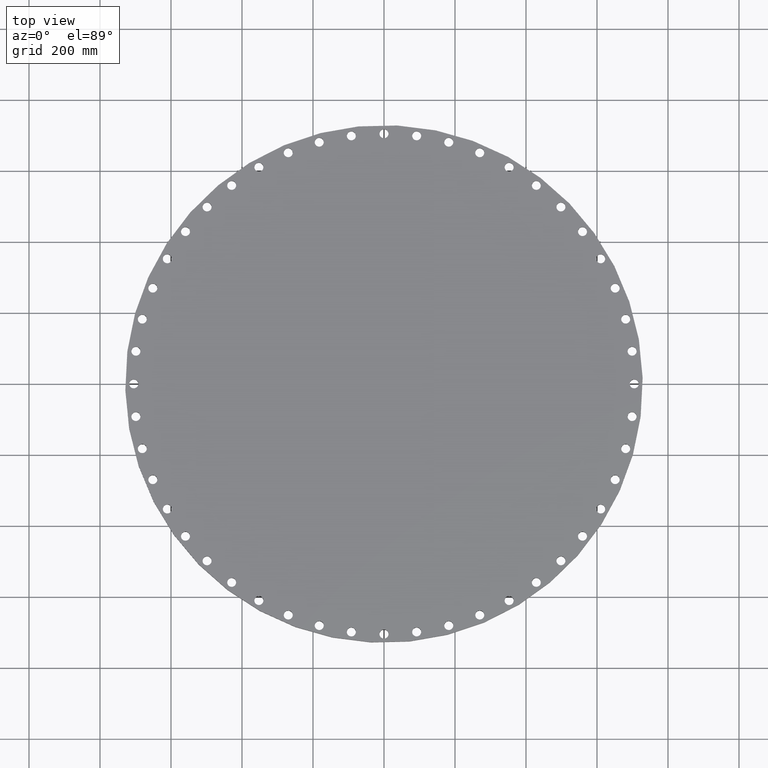
[diagram: clean part render]
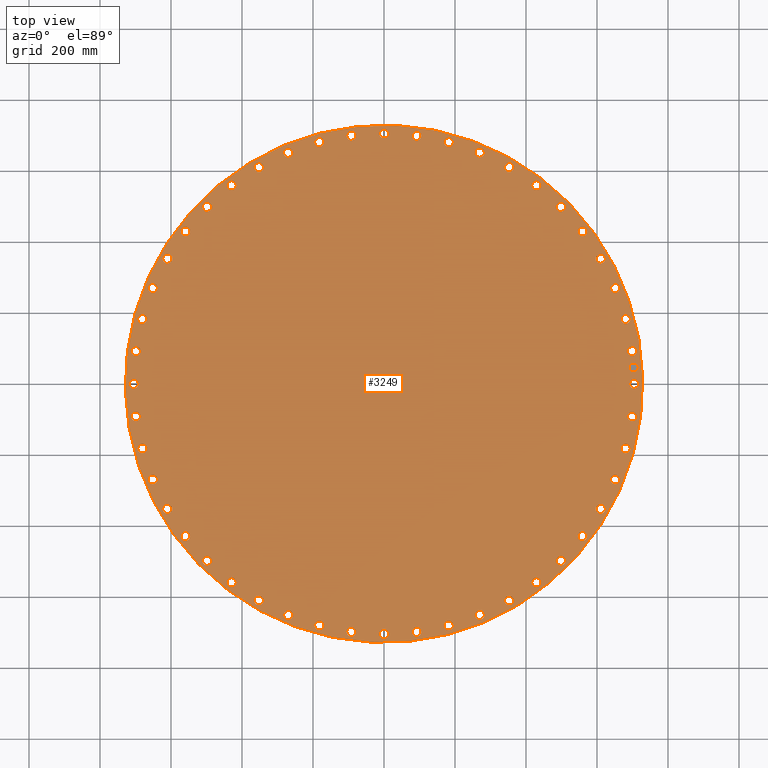
[diagram: same view with one face highlighted and labeled with its STEP entity id]
A machine part, top view. The second image highlights one B-rep face of the part: STEP entity #3249.
In plain terms, the highlighted planar face has unit normal (0, 0, -1).
Its self-contained STEP definition (entity closure, byte-faithful):
#65=AXIS2_PLACEMENT_3D('Circle Axis2P3D',#63,#64,$) ;
#82=AXIS2_PLACEMENT_3D('Circle Axis2P3D',#80,#81,$) ;
#115=AXIS2_PLACEMENT_3D('Circle Axis2P3D',#113,#114,$) ;
#139=AXIS2_PLACEMENT_3D('Circle Axis2P3D',#137,#138,$) ;
#1030=AXIS2_PLACEMENT_3D('Circle Axis2P3D',#1028,#1029,$) ;
#1042=AXIS2_PLACEMENT_3D('Circle Axis2P3D',#1040,#1041,$) ;
#1073=AXIS2_PLACEMENT_3D('Circle Axis2P3D',#1071,#1072,$) ;
#1085=AXIS2_PLACEMENT_3D('Circle Axis2P3D',#1083,#1084,$) ;
#1116=AXIS2_PLACEMENT_3D('Circle Axis2P3D',#1114,#1115,$) ;
#1128=AXIS2_PLACEMENT_3D('Circle Axis2P3D',#1126,#1127,$) ;
#1159=AXIS2_PLACEMENT_3D('Circle Axis2P3D',#1157,#1158,$) ;
#1171=AXIS2_PLACEMENT_3D('Circle Axis2P3D',#1169,#1170,$) ;
#1202=AXIS2_PLACEMENT_3D('Circle Axis2P3D',#1200,#1201,$) ;
#1214=AXIS2_PLACEMENT_3D('Circle Axis2P3D',#1212,#1213,$) ;
#1245=AXIS2_PLACEMENT_3D('Circle Axis2P3D',#1243,#1244,$) ;
#1257=AXIS2_PLACEMENT_3D('Circle Axis2P3D',#1255,#1256,$) ;
#1288=AXIS2_PLACEMENT_3D('Circle Axis2P3D',#1286,#1287,$) ;
#1300=AXIS2_PLACEMENT_3D('Circle Axis2P3D',#1298,#1299,$) ;
#1331=AXIS2_PLACEMENT_3D('Circle Axis2P3D',#1329,#1330,$) ;
#1343=AXIS2_PLACEMENT_3D('Circle Axis2P3D',#1341,#1342,$) ;
#1374=AXIS2_PLACEMENT_3D('Circle Axis2P3D',#1372,#1373,$) ;
#1386=AXIS2_PLACEMENT_3D('Circle Axis2P3D',#1384,#1385,$) ;
#1417=AXIS2_PLACEMENT_3D('Circle Axis2P3D',#1415,#1416,$) ;
#1429=AXIS2_PLACEMENT_3D('Circle Axis2P3D',#1427,#1428,$) ;
#1460=AXIS2_PLACEMENT_3D('Circle Axis2P3D',#1458,#1459,$) ;
#1472=AXIS2_PLACEMENT_3D('Circle Axis2P3D',#1470,#1471,$) ;
#1503=AXIS2_PLACEMENT_3D('Circle Axis2P3D',#1501,#1502,$) ;
#1515=AXIS2_PLACEMENT_3D('Circle Axis2P3D',#1513,#1514,$) ;
#1546=AXIS2_PLACEMENT_3D('Circle Axis2P3D',#1544,#1545,$) ;
#1558=AXIS2_PLACEMENT_3D('Circle Axis2P3D',#1556,#1557,$) ;
#1589=AXIS2_PLACEMENT_3D('Circle Axis2P3D',#1587,#1588,$) ;
#1601=AXIS2_PLACEMENT_3D('Circle Axis2P3D',#1599,#1600,$) ;
#1632=AXIS2_PLACEMENT_3D('Circle Axis2P3D',#1630,#1631,$) ;
#1644=AXIS2_PLACEMENT_3D('Circle Axis2P3D',#1642,#1643,$) ;
#1675=AXIS2_PLACEMENT_3D('Circle Axis2P3D',#1673,#1674,$) ;
#1687=AXIS2_PLACEMENT_3D('Circle Axis2P3D',#1685,#1686,$) ;
#1718=AXIS2_PLACEMENT_3D('Circle Axis2P3D',#1716,#1717,$) ;
#1730=AXIS2_PLACEMENT_3D('Circle Axis2P3D',#1728,#1729,$) ;
#1761=AXIS2_PLACEMENT_3D('Circle Axis2P3D',#1759,#1760,$) ;
#1773=AXIS2_PLACEMENT_3D('Circle Axis2P3D',#1771,#1772,$) ;
#1804=AXIS2_PLACEMENT_3D('Circle Axis2P3D',#1802,#1803,$) ;
#1816=AXIS2_PLACEMENT_3D('Circle Axis2P3D',#1814,#1815,$) ;
#1847=AXIS2_PLACEMENT_3D('Circle Axis2P3D',#1845,#1846,$) ;
#1859=AXIS2_PLACEMENT_3D('Circle Axis2P3D',#1857,#1858,$) ;
#1890=AXIS2_PLACEMENT_3D('Circle Axis2P3D',#1888,#1889,$) ;
#1902=AXIS2_PLACEMENT_3D('Circle Axis2P3D',#1900,#1901,$) ;
#1933=AXIS2_PLACEMENT_3D('Circle Axis2P3D',#1931,#1932,$) ;
#1945=AXIS2_PLACEMENT_3D('Circle Axis2P3D',#1943,#1944,$) ;
#1976=AXIS2_PLACEMENT_3D('Circle Axis2P3D',#1974,#1975,$) ;
#1988=AXIS2_PLACEMENT_3D('Circle Axis2P3D',#1986,#1987,$) ;
#2019=AXIS2_PLACEMENT_3D('Circle Axis2P3D',#2017,#2018,$) ;
#2031=AXIS2_PLACEMENT_3D('Circle Axis2P3D',#2029,#2030,$) ;
#2062=AXIS2_PLACEMENT_3D('Circle Axis2P3D',#2060,#2061,$) ;
#2074=AXIS2_PLACEMENT_3D('Circle Axis2P3D',#2072,#2073,$) ;
#2105=AXIS2_PLACEMENT_3D('Circle Axis2P3D',#2103,#2104,$) ;
#2117=AXIS2_PLACEMENT_3D('Circle Axis2P3D',#2115,#2116,$) ;
#2148=AXIS2_PLACEMENT_3D('Circle Axis2P3D',#2146,#2147,$) ;
#2160=AXIS2_PLACEMENT_3D('Circle Axis2P3D',#2158,#2159,$) ;
#2191=AXIS2_PLACEMENT_3D('Circle Axis2P3D',#2189,#2190,$) ;
#2203=AXIS2_PLACEMENT_3D('Circle Axis2P3D',#2201,#2202,$) ;
#2234=AXIS2_PLACEMENT_3D('Circle Axis2P3D',#2232,#2233,$) ;
#2246=AXIS2_PLACEMENT_3D('Circle Axis2P3D',#2244,#2245,$) ;
#2277=AXIS2_PLACEMENT_3D('Circle Axis2P3D',#2275,#2276,$) ;
#2289=AXIS2_PLACEMENT_3D('Circle Axis2P3D',#2287,#2288,$) ;
#2320=AXIS2_PLACEMENT_3D('Circle Axis2P3D',#2318,#2319,$) ;
#2332=AXIS2_PLACEMENT_3D('Circle Axis2P3D',#2330,#2331,$) ;
#2363=AXIS2_PLACEMENT_3D('Circle Axis2P3D',#2361,#2362,$) ;
#2375=AXIS2_PLACEMENT_3D('Circle Axis2P3D',#2373,#2374,$) ;
#2406=AXIS2_PLACEMENT_3D('Circle Axis2P3D',#2404,#2405,$) ;
#2418=AXIS2_PLACEMENT_3D('Circle Axis2P3D',#2416,#2417,$) ;
#2449=AXIS2_PLACEMENT_3D('Circle Axis2P3D',#2447,#2448,$) ;
#2461=AXIS2_PLACEMENT_3D('Circle Axis2P3D',#2459,#2460,$) ;
#2492=AXIS2_PLACEMENT_3D('Circle Axis2P3D',#2490,#2491,$) ;
#2504=AXIS2_PLACEMENT_3D('Circle Axis2P3D',#2502,#2503,$) ;
#2535=AXIS2_PLACEMENT_3D('Circle Axis2P3D',#2533,#2534,$) ;
#2547=AXIS2_PLACEMENT_3D('Circle Axis2P3D',#2545,#2546,$) ;
#2578=AXIS2_PLACEMENT_3D('Circle Axis2P3D',#2576,#2577,$) ;
#2590=AXIS2_PLACEMENT_3D('Circle Axis2P3D',#2588,#2589,$) ;
#2621=AXIS2_PLACEMENT_3D('Circle Axis2P3D',#2619,#2620,$) ;
#2633=AXIS2_PLACEMENT_3D('Circle Axis2P3D',#2631,#2632,$) ;
#2664=AXIS2_PLACEMENT_3D('Circle Axis2P3D',#2662,#2663,$) ;
#2676=AXIS2_PLACEMENT_3D('Circle Axis2P3D',#2674,#2675,$) ;
#2707=AXIS2_PLACEMENT_3D('Circle Axis2P3D',#2705,#2706,$) ;
#2719=AXIS2_PLACEMENT_3D('Circle Axis2P3D',#2717,#2718,$) ;
#2750=AXIS2_PLACEMENT_3D('Circle Axis2P3D',#2748,#2749,$) ;
#2762=AXIS2_PLACEMENT_3D('Circle Axis2P3D',#2760,#2761,$) ;
#2793=AXIS2_PLACEMENT_3D('Circle Axis2P3D',#2791,#2792,$) ;
#2805=AXIS2_PLACEMENT_3D('Circle Axis2P3D',#2803,#2804,$) ;
#2836=AXIS2_PLACEMENT_3D('Circle Axis2P3D',#2834,#2835,$) ;
#2848=AXIS2_PLACEMENT_3D('Circle Axis2P3D',#2846,#2847,$) ;
#2879=AXIS2_PLACEMENT_3D('Circle Axis2P3D',#2877,#2878,$) ;
#2891=AXIS2_PLACEMENT_3D('Circle Axis2P3D',#2889,#2890,$) ;
#2922=AXIS2_PLACEMENT_3D('Circle Axis2P3D',#2920,#2921,$) ;
#2934=AXIS2_PLACEMENT_3D('Circle Axis2P3D',#2932,#2933,$) ;
#2965=AXIS2_PLACEMENT_3D('Circle Axis2P3D',#2963,#2964,$) ;
#2977=AXIS2_PLACEMENT_3D('Circle Axis2P3D',#2975,#2976,$) ;
#3008=AXIS2_PLACEMENT_3D('Circle Axis2P3D',#3006,#3007,$) ;
#3020=AXIS2_PLACEMENT_3D('Circle Axis2P3D',#3018,#3019,$) ;
#3033=AXIS2_PLACEMENT_3D('Plane Axis2P3D',#3030,#3031,#3032) ;
#3233=AXIS2_PLACEMENT_3D('Circle Axis2P3D',#3231,#3232,$) ;
#3242=AXIS2_PLACEMENT_3D('Circle Axis2P3D',#3240,#3241,$) ;
#46=CARTESIAN_POINT('Vertex',(27.3112087192,0.239712769303,2.19000000001)) ;
#60=CARTESIAN_POINT('Vertex',(28.1887912811,-0.239712769303,2.19000000001)) ;
#63=CARTESIAN_POINT('Axis2P3D Location',(27.7500000001,0.,2.19000000001)) ;
#80=CARTESIAN_POINT('Axis2P3D Location',(27.7500000001,0.,2.19000000001)) ;
#110=CARTESIAN_POINT('Vertex',(13.7547187026,25.1778437007,2.19000000001)) ;
#113=CARTESIAN_POINT('Axis2P3D Location',(0.,0.,2.19000000001)) ;
#117=CARTESIAN_POINT('Vertex',(-13.7547187026,-25.1778437007,2.19000000001)) ;
#137=CARTESIAN_POINT('Axis2P3D Location',(0.,0.,2.19000000001)) ;
#1018=CARTESIAN_POINT('Vertex',(-27.1088463375,3.32716608571,2.19000000001)) ;
#1025=CARTESIAN_POINT('Vertex',(-27.9163434689,3.91703758253,2.19000000001)) ;
#1028=CARTESIAN_POINT('Axis2P3D Location',(-27.5125949032,3.62210183412,2.19000000001)) ;
#1040=CARTESIAN_POINT('Axis2P3D Location',(-27.5125949032,3.62210183412,2.19000000001)) ;
#1061=CARTESIAN_POINT('Vertex',(26.4426440791,-6.83711620653,2.19000000001)) ;
#1068=CARTESIAN_POINT('Vertex',(27.1662392802,-7.52734079672,2.19000000001)) ;
#1071=CARTESIAN_POINT('Axis2P3D Location',(26.8044416796,-7.18222850162,2.19000000001)) ;
#1083=CARTESIAN_POINT('Axis2P3D Location',(26.8044416796,-7.18222850162,2.19000000001)) ;
#1104=CARTESIAN_POINT('Vertex',(-26.4426440791,6.83711620653,2.19000000001)) ;
#1111=CARTESIAN_POINT('Vertex',(-27.1662392802,7.52734079672,2.19000000001)) ;
#1114=CARTESIAN_POINT('Axis2P3D Location',(-26.8044416796,7.18222850162,2.19000000001)) ;
#1126=CARTESIAN_POINT('Axis2P3D Location',(-26.8044416796,7.18222850162,2.19000000001)) ;
#1147=CARTESIAN_POINT('Vertex',(25.3240008491,-10.2300813734,2.19000000001)) ;
#1154=CARTESIAN_POINT('Vertex',(25.9513132055,-11.0088491229,2.19000000001)) ;
#1157=CARTESIAN_POINT('Axis2P3D Location',(25.6376570273,-10.6194652482,2.19000000001)) ;
#1169=CARTESIAN_POINT('Axis2P3D Location',(25.6376570273,-10.6194652482,2.19000000001)) ;
#1190=CARTESIAN_POINT('Vertex',(-25.3240008491,10.2300813734,2.19000000001)) ;
#1197=CARTESIAN_POINT('Vertex',(-25.9513132055,11.0088491229,2.19000000001)) ;
#1200=CARTESIAN_POINT('Axis2P3D Location',(-25.6376570273,10.6194652482,2.19000000001)) ;
#1212=CARTESIAN_POINT('Axis2P3D Location',(-25.6376570273,10.6194652482,2.19000000001)) ;
#1233=CARTESIAN_POINT('Vertex',(23.7720569435,-13.4480070118,2.19000000001)) ;
#1240=CARTESIAN_POINT('Vertex',(24.2923529667,-14.3019929884,2.19000000001)) ;
#1243=CARTESIAN_POINT('Axis2P3D Location',(24.0322049551,-13.8750000001,2.19000000001)) ;
#1255=CARTESIAN_POINT('Axis2P3D Location',(24.0322049551,-13.8750000001,2.19000000001)) ;
#1276=CARTESIAN_POINT('Vertex',(-23.7720569435,13.4480070118,2.19000000001)) ;
#1283=CARTESIAN_POINT('Vertex',(-24.2923529667,14.3019929884,2.19000000001)) ;
#1286=CARTESIAN_POINT('Axis2P3D Location',(-24.0322049551,13.8750000001,2.19000000001)) ;
#1298=CARTESIAN_POINT('Axis2P3D Location',(-24.0322049551,13.8750000001,2.19000000001)) ;
#1319=CARTESIAN_POINT('Vertex',(21.8133665527,-16.4358335216,2.19000000001)) ;
#1326=CARTESIAN_POINT('Vertex',(22.2177438336,-17.3504257885,2.19000000001)) ;
#1329=CARTESIAN_POINT('Axis2P3D Location',(22.0155551932,-16.8931296551,2.19000000001)) ;
#1341=CARTESIAN_POINT('Axis2P3D Location',(22.0155551932,-16.8931296551,2.19000000001)) ;
#1362=CARTESIAN_POINT('Vertex',(-21.8133665527,16.4358335216,2.19000000001)) ;
#1369=CARTESIAN_POINT('Vertex',(-22.2177438336,17.3504257885,2.19000000001)) ;
#1372=CARTESIAN_POINT('Axis2P3D Location',(-22.0155551932,16.8931296551,2.19000000001)) ;
#1384=CARTESIAN_POINT('Axis2P3D Location',(-22.0155551932,16.8931296551,2.19000000001)) ;
#1405=CARTESIAN_POINT('Vertex',(19.4814434124,-19.142438363,2.19000000001)) ;
#1412=CARTESIAN_POINT('Vertex',(19.7629829436,-20.101987993,2.19000000001)) ;
#1415=CARTESIAN_POINT('Axis2P3D Location',(19.622213178,-19.622213178,2.19000000001)) ;
#1427=CARTESIAN_POINT('Axis2P3D Location',(19.622213178,-19.622213178,2.19000000001)) ;
#1448=CARTESIAN_POINT('Vertex',(-19.4814434124,19.142438363,2.19000000001)) ;
#1455=CARTESIAN_POINT('Vertex',(-19.7629829436,20.101987993,2.19000000001)) ;
#1458=CARTESIAN_POINT('Axis2P3D Location',(-19.622213178,19.622213178,2.19000000001)) ;
#1470=CARTESIAN_POINT('Axis2P3D Location',(-19.622213178,19.622213178,2.19000000001)) ;
#1491=CARTESIAN_POINT('Vertex',(16.8161873741,-21.5215107767,2.19000000001)) ;
#1498=CARTESIAN_POINT('Vertex',(16.970071936,-22.5095996096,2.19000000001)) ;
#1501=CARTESIAN_POINT('Axis2P3D Location',(16.8931296551,-22.0155551932,2.19000000001)) ;
#1513=CARTESIAN_POINT('Axis2P3D Location',(16.8931296551,-22.0155551932,2.19000000001)) ;
#1534=CARTESIAN_POINT('Vertex',(-16.8161873741,21.5215107767,2.19000000001)) ;
#1541=CARTESIAN_POINT('Vertex',(-16.970071936,22.5095996096,2.19000000001)) ;
#1544=CARTESIAN_POINT('Axis2P3D Location',(-16.8931296551,22.0155551932,2.19000000001)) ;
#1556=CARTESIAN_POINT('Axis2P3D Location',(-16.8931296551,22.0155551932,2.19000000001)) ;
#1577=CARTESIAN_POINT('Vertex',(13.8632017074,-23.5323441742,2.19000000001)) ;
#1584=CARTESIAN_POINT('Vertex',(13.8867982927,-24.532065736,2.19000000001)) ;
#1587=CARTESIAN_POINT('Axis2P3D Location',(13.8750000001,-24.0322049551,2.19000000001)) ;
#1599=CARTESIAN_POINT('Axis2P3D Location',(13.8750000001,-24.0322049551,2.19000000001)) ;
#1620=CARTESIAN_POINT('Vertex',(-13.8632017074,23.5323441742,2.19000000001)) ;
#1627=CARTESIAN_POINT('Vertex',(-13.8867982927,24.532065736,2.19000000001)) ;
#1630=CARTESIAN_POINT('Axis2P3D Location',(-13.8750000001,24.0322049551,2.19000000001)) ;
#1642=CARTESIAN_POINT('Axis2P3D Location',(-13.8750000001,24.0322049551,2.19000000001)) ;
#1663=CARTESIAN_POINT('Vertex',(10.6730128159,-25.1405326384,2.19000000001)) ;
#1670=CARTESIAN_POINT('Vertex',(10.5659176804,-26.1347814161,2.19000000001)) ;
#1673=CARTESIAN_POINT('Axis2P3D Location',(10.6194652482,-25.6376570273,2.19000000001)) ;
#1685=CARTESIAN_POINT('Axis2P3D Location',(10.6194652482,-25.6376570273,2.19000000001)) ;
#1706=CARTESIAN_POINT('Vertex',(-10.6730128159,25.1405326384,2.19000000001)) ;
#1713=CARTESIAN_POINT('Vertex',(-10.5659176804,26.1347814161,2.19000000001)) ;
#1716=CARTESIAN_POINT('Axis2P3D Location',(-10.6194652482,25.6376570273,2.19000000001)) ;
#1728=CARTESIAN_POINT('Axis2P3D Location',(-10.6194652482,25.6376570273,2.19000000001)) ;
#1749=CARTESIAN_POINT('Vertex',(7.30020571605,-26.318559619,2.19000000001)) ;
#1756=CARTESIAN_POINT('Vertex',(7.0642512872,-27.2903237403,2.19000000001)) ;
#1759=CARTESIAN_POINT('Axis2P3D Location',(7.18222850162,-26.8044416796,2.19000000001)) ;
#1771=CARTESIAN_POINT('Axis2P3D Location',(7.18222850162,-26.8044416796,2.19000000001)) ;
#1792=CARTESIAN_POINT('Vertex',(-7.30020571605,26.318559619,2.19000000001)) ;
#1799=CARTESIAN_POINT('Vertex',(-7.0642512872,27.2903237403,2.19000000001)) ;
#1802=CARTESIAN_POINT('Axis2P3D Location',(-7.18222850162,26.8044416796,2.19000000001)) ;
#1814=CARTESIAN_POINT('Axis2P3D Location',(-7.18222850162,26.8044416796,2.19000000001)) ;
#1835=CARTESIAN_POINT('Vertex',(3.80249007237,-27.0462687475,2.19000000001)) ;
#1842=CARTESIAN_POINT('Vertex',(3.44171359587,-27.9789210589,2.19000000001)) ;
#1845=CARTESIAN_POINT('Axis2P3D Location',(3.62210183412,-27.5125949032,2.19000000001)) ;
#1857=CARTESIAN_POINT('Axis2P3D Location',(3.62210183412,-27.5125949032,2.19000000001)) ;
#1878=CARTESIAN_POINT('Vertex',(-3.80249007237,27.0462687475,2.19000000001)) ;
#1885=CARTESIAN_POINT('Vertex',(-3.44171359587,27.9789210589,2.19000000001)) ;
#1888=CARTESIAN_POINT('Axis2P3D Location',(-3.62210183412,27.5125949032,2.19000000001)) ;
#1900=CARTESIAN_POINT('Axis2P3D Location',(-3.62210183412,27.5125949032,2.19000000001)) ;
#1921=CARTESIAN_POINT('Vertex',(0.239712769303,-27.3112087192,2.19000000001)) ;
#1928=CARTESIAN_POINT('Vertex',(-0.239712769303,-28.1887912811,2.19000000001)) ;
#1931=CARTESIAN_POINT('Axis2P3D Location',(-2.776662319E-015,-27.7500000001,2.19000000001)) ;
#1943=CARTESIAN_POINT('Axis2P3D Location',(-2.776662319E-015,-27.7500000001,2.19000000001)) ;
#1964=CARTESIAN_POINT('Vertex',(-0.239712769303,27.3112087192,2.19000000001)) ;
#1971=CARTESIAN_POINT('Vertex',(0.239712769303,28.1887912811,2.19000000001)) ;
#1974=CARTESIAN_POINT('Axis2P3D Location',(-5.09759230147E-015,27.7500000001,2.19000000001)) ;
#1986=CARTESIAN_POINT('Axis2P3D Location',(-5.09759230147E-015,27.7500000001,2.19000000001)) ;
#2007=CARTESIAN_POINT('Vertex',(-3.32716608571,-27.1088463375,2.19000000001)) ;
#2014=CARTESIAN_POINT('Vertex',(-3.91703758253,-27.9163434689,2.19000000001)) ;
#2017=CARTESIAN_POINT('Axis2P3D Location',(-3.62210183412,-27.5125949032,2.19000000001)) ;
#2029=CARTESIAN_POINT('Axis2P3D Location',(-3.62210183412,-27.5125949032,2.19000000001)) ;
#2050=CARTESIAN_POINT('Vertex',(3.32716608571,27.1088463375,2.19000000001)) ;
#2057=CARTESIAN_POINT('Vertex',(3.91703758253,27.9163434689,2.19000000001)) ;
#2060=CARTESIAN_POINT('Axis2P3D Location',(3.62210183412,27.5125949032,2.19000000001)) ;
#2072=CARTESIAN_POINT('Axis2P3D Location',(3.62210183412,27.5125949032,2.19000000001)) ;
#2093=CARTESIAN_POINT('Vertex',(-6.83711620653,-26.4426440791,2.19000000001)) ;
#2100=CARTESIAN_POINT('Vertex',(-7.52734079672,-27.1662392802,2.19000000001)) ;
#2103=CARTESIAN_POINT('Axis2P3D Location',(-7.18222850162,-26.8044416796,2.19000000001)) ;
#2115=CARTESIAN_POINT('Axis2P3D Location',(-7.18222850162,-26.8044416796,2.19000000001)) ;
#2136=CARTESIAN_POINT('Vertex',(6.83711620653,26.4426440791,2.19000000001)) ;
#2143=CARTESIAN_POINT('Vertex',(7.52734079672,27.1662392802,2.19000000001)) ;
#2146=CARTESIAN_POINT('Axis2P3D Location',(7.18222850162,26.8044416796,2.19000000001)) ;
#2158=CARTESIAN_POINT('Axis2P3D Location',(7.18222850162,26.8044416796,2.19000000001)) ;
#2179=CARTESIAN_POINT('Vertex',(-10.2300813734,-25.3240008491,2.19000000001)) ;
#2186=CARTESIAN_POINT('Vertex',(-11.0088491229,-25.9513132055,2.19000000001)) ;
#2189=CARTESIAN_POINT('Axis2P3D Location',(-10.6194652482,-25.6376570273,2.19000000001)) ;
#2201=CARTESIAN_POINT('Axis2P3D Location',(-10.6194652482,-25.6376570273,2.19000000001)) ;
#2222=CARTESIAN_POINT('Vertex',(10.2300813734,25.3240008491,2.19000000001)) ;
#2229=CARTESIAN_POINT('Vertex',(11.0088491229,25.9513132055,2.19000000001)) ;
#2232=CARTESIAN_POINT('Axis2P3D Location',(10.6194652482,25.6376570273,2.19000000001)) ;
#2244=CARTESIAN_POINT('Axis2P3D Location',(10.6194652482,25.6376570273,2.19000000001)) ;
#2265=CARTESIAN_POINT('Vertex',(-13.4480070118,-23.7720569435,2.19000000001)) ;
#2272=CARTESIAN_POINT('Vertex',(-14.3019929884,-24.2923529667,2.19000000001)) ;
#2275=CARTESIAN_POINT('Axis2P3D Location',(-13.8750000001,-24.0322049551,2.19000000001)) ;
#2287=CARTESIAN_POINT('Axis2P3D Location',(-13.8750000001,-24.0322049551,2.19000000001)) ;
#2308=CARTESIAN_POINT('Vertex',(13.4480070118,23.7720569435,2.19000000001)) ;
#2315=CARTESIAN_POINT('Vertex',(14.3019929884,24.2923529667,2.19000000001)) ;
#2318=CARTESIAN_POINT('Axis2P3D Location',(13.8750000001,24.0322049551,2.19000000001)) ;
#2330=CARTESIAN_POINT('Axis2P3D Location',(13.8750000001,24.0322049551,2.19000000001)) ;
#2351=CARTESIAN_POINT('Vertex',(-16.4358335216,-21.8133665527,2.19000000001)) ;
#2358=CARTESIAN_POINT('Vertex',(-17.3504257885,-22.2177438336,2.19000000001)) ;
#2361=CARTESIAN_POINT('Axis2P3D Location',(-16.8931296551,-22.0155551932,2.19000000001)) ;
#2373=CARTESIAN_POINT('Axis2P3D Location',(-16.8931296551,-22.0155551932,2.19000000001)) ;
#2394=CARTESIAN_POINT('Vertex',(16.4358335216,21.8133665527,2.19000000001)) ;
#2401=CARTESIAN_POINT('Vertex',(17.3504257885,22.2177438336,2.19000000001)) ;
#2404=CARTESIAN_POINT('Axis2P3D Location',(16.8931296551,22.0155551932,2.19000000001)) ;
#2416=CARTESIAN_POINT('Axis2P3D Location',(16.8931296551,22.0155551932,2.19000000001)) ;
#2437=CARTESIAN_POINT('Vertex',(-19.142438363,-19.4814434124,2.19000000001)) ;
#2444=CARTESIAN_POINT('Vertex',(-20.101987993,-19.7629829436,2.19000000001)) ;
#2447=CARTESIAN_POINT('Axis2P3D Location',(-19.622213178,-19.622213178,2.19000000001)) ;
#2459=CARTESIAN_POINT('Axis2P3D Location',(-19.622213178,-19.622213178,2.19000000001)) ;
#2480=CARTESIAN_POINT('Vertex',(19.142438363,19.4814434124,2.19000000001)) ;
#2487=CARTESIAN_POINT('Vertex',(20.101987993,19.7629829436,2.19000000001)) ;
#2490=CARTESIAN_POINT('Axis2P3D Location',(19.622213178,19.622213178,2.19000000001)) ;
#2502=CARTESIAN_POINT('Axis2P3D Location',(19.622213178,19.622213178,2.19000000001)) ;
#2523=CARTESIAN_POINT('Vertex',(-21.5215107767,-16.8161873741,2.19000000001)) ;
#2530=CARTESIAN_POINT('Vertex',(-22.5095996096,-16.970071936,2.19000000001)) ;
#2533=CARTESIAN_POINT('Axis2P3D Location',(-22.0155551932,-16.8931296551,2.19000000001)) ;
#2545=CARTESIAN_POINT('Axis2P3D Location',(-22.0155551932,-16.8931296551,2.19000000001)) ;
#2566=CARTESIAN_POINT('Vertex',(21.5215107767,16.8161873741,2.19000000001)) ;
#2573=CARTESIAN_POINT('Vertex',(22.5095996096,16.970071936,2.19000000001)) ;
#2576=CARTESIAN_POINT('Axis2P3D Location',(22.0155551932,16.8931296551,2.19000000001)) ;
#2588=CARTESIAN_POINT('Axis2P3D Location',(22.0155551932,16.8931296551,2.19000000001)) ;
#2609=CARTESIAN_POINT('Vertex',(-23.5323441742,-13.8632017074,2.19000000001)) ;
#2616=CARTESIAN_POINT('Vertex',(-24.532065736,-13.8867982927,2.19000000001)) ;
#2619=CARTESIAN_POINT('Axis2P3D Location',(-24.0322049551,-13.8750000001,2.19000000001)) ;
#2631=CARTESIAN_POINT('Axis2P3D Location',(-24.0322049551,-13.8750000001,2.19000000001)) ;
#2652=CARTESIAN_POINT('Vertex',(23.5323441742,13.8632017074,2.19000000001)) ;
#2659=CARTESIAN_POINT('Vertex',(24.532065736,13.8867982927,2.19000000001)) ;
#2662=CARTESIAN_POINT('Axis2P3D Location',(24.0322049551,13.8750000001,2.19000000001)) ;
#2674=CARTESIAN_POINT('Axis2P3D Location',(24.0322049551,13.8750000001,2.19000000001)) ;
#2695=CARTESIAN_POINT('Vertex',(-25.1405326384,-10.6730128159,2.19000000001)) ;
#2702=CARTESIAN_POINT('Vertex',(-26.1347814161,-10.5659176804,2.19000000001)) ;
#2705=CARTESIAN_POINT('Axis2P3D Location',(-25.6376570273,-10.6194652482,2.19000000001)) ;
#2717=CARTESIAN_POINT('Axis2P3D Location',(-25.6376570273,-10.6194652482,2.19000000001)) ;
#2738=CARTESIAN_POINT('Vertex',(25.1405326384,10.6730128159,2.19000000001)) ;
#2745=CARTESIAN_POINT('Vertex',(26.1347814161,10.5659176804,2.19000000001)) ;
#2748=CARTESIAN_POINT('Axis2P3D Location',(25.6376570273,10.6194652482,2.19000000001)) ;
#2760=CARTESIAN_POINT('Axis2P3D Location',(25.6376570273,10.6194652482,2.19000000001)) ;
#2781=CARTESIAN_POINT('Vertex',(-26.318559619,-7.30020571605,2.19000000001)) ;
#2788=CARTESIAN_POINT('Vertex',(-27.2903237403,-7.0642512872,2.19000000001)) ;
#2791=CARTESIAN_POINT('Axis2P3D Location',(-26.8044416796,-7.18222850162,2.19000000001)) ;
#2803=CARTESIAN_POINT('Axis2P3D Location',(-26.8044416796,-7.18222850162,2.19000000001)) ;
#2824=CARTESIAN_POINT('Vertex',(26.318559619,7.30020571605,2.19000000001)) ;
#2831=CARTESIAN_POINT('Vertex',(27.2903237403,7.0642512872,2.19000000001)) ;
#2834=CARTESIAN_POINT('Axis2P3D Location',(26.8044416796,7.18222850162,2.19000000001)) ;
#2846=CARTESIAN_POINT('Axis2P3D Location',(26.8044416796,7.18222850162,2.19000000001)) ;
#2867=CARTESIAN_POINT('Vertex',(-27.0462687475,-3.80249007237,2.19000000001)) ;
#2874=CARTESIAN_POINT('Vertex',(-27.9789210589,-3.44171359587,2.19000000001)) ;
#2877=CARTESIAN_POINT('Axis2P3D Location',(-27.5125949032,-3.62210183412,2.19000000001)) ;
#2889=CARTESIAN_POINT('Axis2P3D Location',(-27.5125949032,-3.62210183412,2.19000000001)) ;
#2910=CARTESIAN_POINT('Vertex',(27.0462687475,3.80249007237,2.19000000001)) ;
#2917=CARTESIAN_POINT('Vertex',(27.9789210589,3.44171359587,2.19000000001)) ;
#2920=CARTESIAN_POINT('Axis2P3D Location',(27.5125949032,3.62210183412,2.19000000001)) ;
#2932=CARTESIAN_POINT('Axis2P3D Location',(27.5125949032,3.62210183412,2.19000000001)) ;
#2953=CARTESIAN_POINT('Vertex',(-27.3112087192,-0.239712769303,2.19000000001)) ;
#2960=CARTESIAN_POINT('Vertex',(-28.1887912811,0.239712769303,2.19000000001)) ;
#2963=CARTESIAN_POINT('Axis2P3D Location',(-27.7500000001,-3.39839486765E-015,2.19000000001)) ;
#2975=CARTESIAN_POINT('Axis2P3D Location',(-27.7500000001,-3.39839486765E-015,2.19000000001)) ;
#2996=CARTESIAN_POINT('Vertex',(27.1088463375,-3.32716608571,2.19000000001)) ;
#3003=CARTESIAN_POINT('Vertex',(27.9163434689,-3.91703758253,2.19000000001)) ;
#3006=CARTESIAN_POINT('Axis2P3D Location',(27.5125949032,-3.62210183412,2.19000000001)) ;
#3018=CARTESIAN_POINT('Axis2P3D Location',(27.5125949032,-3.62210183412,2.19000000001)) ;
#3030=CARTESIAN_POINT('Axis2P3D Location',(0.,28.6900000001,2.19000000001)) ;
#3231=CARTESIAN_POINT('Axis2P3D Location',(27.69058512,1.81493683614,2.19000000001)) ;
#3235=CARTESIAN_POINT('Vertex',(27.6578835554,2.31386629777,2.19000000001)) ;
#3237=CARTESIAN_POINT('Vertex',(27.7232866846,1.31600737452,2.19000000001)) ;
#3240=CARTESIAN_POINT('Axis2P3D Location',(27.69058512,1.81493683614,2.19000000001)) ;
#64=DIRECTION('Axis2P3D Direction',(0.,-0.,-0.0393700787402)) ;
#81=DIRECTION('Axis2P3D Direction',(0.,-0.,-0.0393700787402)) ;
#114=DIRECTION('Axis2P3D Direction',(0.,0.,-0.0393700787402)) ;
#138=DIRECTION('Axis2P3D Direction',(0.,0.,-0.0393700787402)) ;
#1029=DIRECTION('Axis2P3D Direction',(0.,0.,-0.0393700787402)) ;
#1041=DIRECTION('Axis2P3D Direction',(0.,0.,-0.0393700787402)) ;
#1072=DIRECTION('Axis2P3D Direction',(0.,-0.,-0.0393700787402)) ;
#1084=DIRECTION('Axis2P3D Direction',(0.,-0.,-0.0393700787402)) ;
#1115=DIRECTION('Axis2P3D Direction',(0.,0.,-0.0393700787402)) ;
#1127=DIRECTION('Axis2P3D Direction',(0.,0.,-0.0393700787402)) ;
#1158=DIRECTION('Axis2P3D Direction',(0.,-0.,-0.0393700787402)) ;
#1170=DIRECTION('Axis2P3D Direction',(0.,-0.,-0.0393700787402)) ;
#1201=DIRECTION('Axis2P3D Direction',(0.,0.,-0.0393700787402)) ;
#1213=DIRECTION('Axis2P3D Direction',(0.,0.,-0.0393700787402)) ;
#1244=DIRECTION('Axis2P3D Direction',(0.,-0.,-0.0393700787402)) ;
#1256=DIRECTION('Axis2P3D Direction',(0.,-0.,-0.0393700787402)) ;
#1287=DIRECTION('Axis2P3D Direction',(0.,0.,-0.0393700787402)) ;
#1299=DIRECTION('Axis2P3D Direction',(0.,0.,-0.0393700787402)) ;
#1330=DIRECTION('Axis2P3D Direction',(0.,-0.,-0.0393700787402)) ;
#1342=DIRECTION('Axis2P3D Direction',(0.,-0.,-0.0393700787402)) ;
#1373=DIRECTION('Axis2P3D Direction',(0.,0.,-0.0393700787402)) ;
#1385=DIRECTION('Axis2P3D Direction',(0.,0.,-0.0393700787402)) ;
#1416=DIRECTION('Axis2P3D Direction',(0.,-0.,-0.0393700787402)) ;
#1428=DIRECTION('Axis2P3D Direction',(0.,-0.,-0.0393700787402)) ;
#1459=DIRECTION('Axis2P3D Direction',(0.,0.,-0.0393700787402)) ;
#1471=DIRECTION('Axis2P3D Direction',(0.,0.,-0.0393700787402)) ;
#1502=DIRECTION('Axis2P3D Direction',(0.,-0.,-0.0393700787402)) ;
#1514=DIRECTION('Axis2P3D Direction',(0.,-0.,-0.0393700787402)) ;
#1545=DIRECTION('Axis2P3D Direction',(0.,0.,-0.0393700787402)) ;
#1557=DIRECTION('Axis2P3D Direction',(0.,0.,-0.0393700787402)) ;
#1588=DIRECTION('Axis2P3D Direction',(0.,-0.,-0.0393700787402)) ;
#1600=DIRECTION('Axis2P3D Direction',(0.,-0.,-0.0393700787402)) ;
#1631=DIRECTION('Axis2P3D Direction',(0.,0.,-0.0393700787402)) ;
#1643=DIRECTION('Axis2P3D Direction',(0.,0.,-0.0393700787402)) ;
#1674=DIRECTION('Axis2P3D Direction',(0.,-0.,-0.0393700787402)) ;
#1686=DIRECTION('Axis2P3D Direction',(0.,-0.,-0.0393700787402)) ;
#1717=DIRECTION('Axis2P3D Direction',(0.,0.,-0.0393700787402)) ;
#1729=DIRECTION('Axis2P3D Direction',(0.,0.,-0.0393700787402)) ;
#1760=DIRECTION('Axis2P3D Direction',(0.,-0.,-0.0393700787402)) ;
#1772=DIRECTION('Axis2P3D Direction',(0.,-0.,-0.0393700787402)) ;
#1803=DIRECTION('Axis2P3D Direction',(0.,0.,-0.0393700787402)) ;
#1815=DIRECTION('Axis2P3D Direction',(0.,0.,-0.0393700787402)) ;
#1846=DIRECTION('Axis2P3D Direction',(0.,-0.,-0.0393700787402)) ;
#1858=DIRECTION('Axis2P3D Direction',(0.,-0.,-0.0393700787402)) ;
#1889=DIRECTION('Axis2P3D Direction',(0.,0.,-0.0393700787402)) ;
#1901=DIRECTION('Axis2P3D Direction',(0.,0.,-0.0393700787402)) ;
#1932=DIRECTION('Axis2P3D Direction',(0.,-0.,-0.0393700787402)) ;
#1944=DIRECTION('Axis2P3D Direction',(0.,-0.,-0.0393700787402)) ;
#1975=DIRECTION('Axis2P3D Direction',(0.,0.,-0.0393700787402)) ;
#1987=DIRECTION('Axis2P3D Direction',(0.,0.,-0.0393700787402)) ;
#2018=DIRECTION('Axis2P3D Direction',(-0.,0.,-0.0393700787402)) ;
#2030=DIRECTION('Axis2P3D Direction',(-0.,0.,-0.0393700787402)) ;
#2061=DIRECTION('Axis2P3D Direction',(0.,0.,-0.0393700787402)) ;
#2073=DIRECTION('Axis2P3D Direction',(0.,0.,-0.0393700787402)) ;
#2104=DIRECTION('Axis2P3D Direction',(-0.,0.,-0.0393700787402)) ;
#2116=DIRECTION('Axis2P3D Direction',(-0.,0.,-0.0393700787402)) ;
#2147=DIRECTION('Axis2P3D Direction',(0.,0.,-0.0393700787402)) ;
#2159=DIRECTION('Axis2P3D Direction',(0.,0.,-0.0393700787402)) ;
#2190=DIRECTION('Axis2P3D Direction',(-0.,0.,-0.0393700787402)) ;
#2202=DIRECTION('Axis2P3D Direction',(-0.,0.,-0.0393700787402)) ;
#2233=DIRECTION('Axis2P3D Direction',(0.,0.,-0.0393700787402)) ;
#2245=DIRECTION('Axis2P3D Direction',(0.,0.,-0.0393700787402)) ;
#2276=DIRECTION('Axis2P3D Direction',(-0.,0.,-0.0393700787402)) ;
#2288=DIRECTION('Axis2P3D Direction',(-0.,0.,-0.0393700787402)) ;
#2319=DIRECTION('Axis2P3D Direction',(0.,0.,-0.0393700787402)) ;
#2331=DIRECTION('Axis2P3D Direction',(0.,0.,-0.0393700787402)) ;
#2362=DIRECTION('Axis2P3D Direction',(-0.,0.,-0.0393700787402)) ;
#2374=DIRECTION('Axis2P3D Direction',(-0.,0.,-0.0393700787402)) ;
#2405=DIRECTION('Axis2P3D Direction',(0.,0.,-0.0393700787402)) ;
#2417=DIRECTION('Axis2P3D Direction',(0.,0.,-0.0393700787402)) ;
#2448=DIRECTION('Axis2P3D Direction',(-0.,0.,-0.0393700787402)) ;
#2460=DIRECTION('Axis2P3D Direction',(-0.,0.,-0.0393700787402)) ;
#2491=DIRECTION('Axis2P3D Direction',(0.,0.,-0.0393700787402)) ;
#2503=DIRECTION('Axis2P3D Direction',(0.,0.,-0.0393700787402)) ;
#2534=DIRECTION('Axis2P3D Direction',(-0.,0.,-0.0393700787402)) ;
#2546=DIRECTION('Axis2P3D Direction',(-0.,0.,-0.0393700787402)) ;
#2577=DIRECTION('Axis2P3D Direction',(0.,0.,-0.0393700787402)) ;
#2589=DIRECTION('Axis2P3D Direction',(0.,0.,-0.0393700787402)) ;
#2620=DIRECTION('Axis2P3D Direction',(-0.,0.,-0.0393700787402)) ;
#2632=DIRECTION('Axis2P3D Direction',(-0.,0.,-0.0393700787402)) ;
#2663=DIRECTION('Axis2P3D Direction',(0.,0.,-0.0393700787402)) ;
#2675=DIRECTION('Axis2P3D Direction',(0.,0.,-0.0393700787402)) ;
#2706=DIRECTION('Axis2P3D Direction',(-0.,0.,-0.0393700787402)) ;
#2718=DIRECTION('Axis2P3D Direction',(-0.,0.,-0.0393700787402)) ;
#2749=DIRECTION('Axis2P3D Direction',(0.,0.,-0.0393700787402)) ;
#2761=DIRECTION('Axis2P3D Direction',(0.,0.,-0.0393700787402)) ;
#2792=DIRECTION('Axis2P3D Direction',(-0.,0.,-0.0393700787402)) ;
#2804=DIRECTION('Axis2P3D Direction',(-0.,0.,-0.0393700787402)) ;
#2835=DIRECTION('Axis2P3D Direction',(0.,0.,-0.0393700787402)) ;
#2847=DIRECTION('Axis2P3D Direction',(0.,0.,-0.0393700787402)) ;
#2878=DIRECTION('Axis2P3D Direction',(-0.,0.,-0.0393700787402)) ;
#2890=DIRECTION('Axis2P3D Direction',(-0.,0.,-0.0393700787402)) ;
#2921=DIRECTION('Axis2P3D Direction',(0.,0.,-0.0393700787402)) ;
#2933=DIRECTION('Axis2P3D Direction',(0.,0.,-0.0393700787402)) ;
#2964=DIRECTION('Axis2P3D Direction',(-0.,0.,-0.0393700787402)) ;
#2976=DIRECTION('Axis2P3D Direction',(-0.,0.,-0.0393700787402)) ;
#3007=DIRECTION('Axis2P3D Direction',(0.,-0.,-0.0393700787402)) ;
#3019=DIRECTION('Axis2P3D Direction',(0.,-0.,-0.0393700787402)) ;
#3031=DIRECTION('Axis2P3D Direction',(0.,0.,-0.0393700787402)) ;
#3032=DIRECTION('Axis2P3D XDirection',(0.0393700787402,0.,0.)) ;
#3232=DIRECTION('Axis2P3D Direction',(0.,0.,-0.0393700787402)) ;
#3241=DIRECTION('Axis2P3D Direction',(0.,0.,-0.0393700787402)) ;
#3036=ORIENTED_EDGE('',*,*,#119,.F.) ;
#3037=ORIENTED_EDGE('',*,*,#141,.F.) ;
#3040=ORIENTED_EDGE('',*,*,#67,.T.) ;
#3041=ORIENTED_EDGE('',*,*,#84,.T.) ;
#3044=ORIENTED_EDGE('',*,*,#3022,.T.) ;
#3045=ORIENTED_EDGE('',*,*,#3010,.T.) ;
#3048=ORIENTED_EDGE('',*,*,#1087,.T.) ;
#3049=ORIENTED_EDGE('',*,*,#1075,.T.) ;
#3052=ORIENTED_EDGE('',*,*,#1173,.T.) ;
#3053=ORIENTED_EDGE('',*,*,#1161,.T.) ;
#3056=ORIENTED_EDGE('',*,*,#1259,.T.) ;
#3057=ORIENTED_EDGE('',*,*,#1247,.T.) ;
#3060=ORIENTED_EDGE('',*,*,#1345,.T.) ;
#3061=ORIENTED_EDGE('',*,*,#1333,.T.) ;
#3064=ORIENTED_EDGE('',*,*,#1431,.T.) ;
#3065=ORIENTED_EDGE('',*,*,#1419,.T.) ;
#3068=ORIENTED_EDGE('',*,*,#1517,.T.) ;
#3069=ORIENTED_EDGE('',*,*,#1505,.T.) ;
#3072=ORIENTED_EDGE('',*,*,#1603,.T.) ;
#3073=ORIENTED_EDGE('',*,*,#1591,.T.) ;
#3076=ORIENTED_EDGE('',*,*,#1689,.T.) ;
#3077=ORIENTED_EDGE('',*,*,#1677,.T.) ;
#3080=ORIENTED_EDGE('',*,*,#1775,.T.) ;
#3081=ORIENTED_EDGE('',*,*,#1763,.T.) ;
#3084=ORIENTED_EDGE('',*,*,#1861,.T.) ;
#3085=ORIENTED_EDGE('',*,*,#1849,.T.) ;
#3088=ORIENTED_EDGE('',*,*,#1947,.T.) ;
#3089=ORIENTED_EDGE('',*,*,#1935,.T.) ;
#3092=ORIENTED_EDGE('',*,*,#2033,.T.) ;
#3093=ORIENTED_EDGE('',*,*,#2021,.T.) ;
#3096=ORIENTED_EDGE('',*,*,#2119,.T.) ;
#3097=ORIENTED_EDGE('',*,*,#2107,.T.) ;
#3100=ORIENTED_EDGE('',*,*,#2205,.T.) ;
#3101=ORIENTED_EDGE('',*,*,#2193,.T.) ;
#3104=ORIENTED_EDGE('',*,*,#2291,.T.) ;
#3105=ORIENTED_EDGE('',*,*,#2279,.T.) ;
#3108=ORIENTED_EDGE('',*,*,#2377,.T.) ;
#3109=ORIENTED_EDGE('',*,*,#2365,.T.) ;
#3112=ORIENTED_EDGE('',*,*,#2463,.T.) ;
#3113=ORIENTED_EDGE('',*,*,#2451,.T.) ;
#3116=ORIENTED_EDGE('',*,*,#2549,.T.) ;
#3117=ORIENTED_EDGE('',*,*,#2537,.T.) ;
#3120=ORIENTED_EDGE('',*,*,#2635,.T.) ;
#3121=ORIENTED_EDGE('',*,*,#2623,.T.) ;
#3124=ORIENTED_EDGE('',*,*,#2721,.T.) ;
#3125=ORIENTED_EDGE('',*,*,#2709,.T.) ;
#3128=ORIENTED_EDGE('',*,*,#2807,.T.) ;
#3129=ORIENTED_EDGE('',*,*,#2795,.T.) ;
#3132=ORIENTED_EDGE('',*,*,#2893,.T.) ;
#3133=ORIENTED_EDGE('',*,*,#2881,.T.) ;
#3136=ORIENTED_EDGE('',*,*,#2979,.T.) ;
#3137=ORIENTED_EDGE('',*,*,#2967,.T.) ;
#3140=ORIENTED_EDGE('',*,*,#1044,.T.) ;
#3141=ORIENTED_EDGE('',*,*,#1032,.T.) ;
#3144=ORIENTED_EDGE('',*,*,#1130,.T.) ;
#3145=ORIENTED_EDGE('',*,*,#1118,.T.) ;
#3148=ORIENTED_EDGE('',*,*,#1216,.T.) ;
#3149=ORIENTED_EDGE('',*,*,#1204,.T.) ;
#3152=ORIENTED_EDGE('',*,*,#1302,.T.) ;
#3153=ORIENTED_EDGE('',*,*,#1290,.T.) ;
#3156=ORIENTED_EDGE('',*,*,#1388,.T.) ;
#3157=ORIENTED_EDGE('',*,*,#1376,.T.) ;
#3160=ORIENTED_EDGE('',*,*,#1474,.T.) ;
#3161=ORIENTED_EDGE('',*,*,#1462,.T.) ;
#3164=ORIENTED_EDGE('',*,*,#1560,.T.) ;
#3165=ORIENTED_EDGE('',*,*,#1548,.T.) ;
#3168=ORIENTED_EDGE('',*,*,#1646,.T.) ;
#3169=ORIENTED_EDGE('',*,*,#1634,.T.) ;
#3172=ORIENTED_EDGE('',*,*,#1732,.T.) ;
#3173=ORIENTED_EDGE('',*,*,#1720,.T.) ;
#3176=ORIENTED_EDGE('',*,*,#1818,.T.) ;
#3177=ORIENTED_EDGE('',*,*,#1806,.T.) ;
#3180=ORIENTED_EDGE('',*,*,#1904,.T.) ;
#3181=ORIENTED_EDGE('',*,*,#1892,.T.) ;
#3184=ORIENTED_EDGE('',*,*,#1990,.T.) ;
#3185=ORIENTED_EDGE('',*,*,#1978,.T.) ;
#3188=ORIENTED_EDGE('',*,*,#2076,.T.) ;
#3189=ORIENTED_EDGE('',*,*,#2064,.T.) ;
#3192=ORIENTED_EDGE('',*,*,#2162,.T.) ;
#3193=ORIENTED_EDGE('',*,*,#2150,.T.) ;
#3196=ORIENTED_EDGE('',*,*,#2248,.T.) ;
#3197=ORIENTED_EDGE('',*,*,#2236,.T.) ;
#3200=ORIENTED_EDGE('',*,*,#2334,.T.) ;
#3201=ORIENTED_EDGE('',*,*,#2322,.T.) ;
#3204=ORIENTED_EDGE('',*,*,#2420,.T.) ;
#3205=ORIENTED_EDGE('',*,*,#2408,.T.) ;
#3208=ORIENTED_EDGE('',*,*,#2506,.T.) ;
#3209=ORIENTED_EDGE('',*,*,#2494,.T.) ;
#3212=ORIENTED_EDGE('',*,*,#2592,.T.) ;
#3213=ORIENTED_EDGE('',*,*,#2580,.T.) ;
#3216=ORIENTED_EDGE('',*,*,#2678,.T.) ;
#3217=ORIENTED_EDGE('',*,*,#2666,.T.) ;
#3220=ORIENTED_EDGE('',*,*,#2764,.T.) ;
#3221=ORIENTED_EDGE('',*,*,#2752,.T.) ;
#3224=ORIENTED_EDGE('',*,*,#2850,.T.) ;
#3225=ORIENTED_EDGE('',*,*,#2838,.T.) ;
#3228=ORIENTED_EDGE('',*,*,#2936,.T.) ;
#3229=ORIENTED_EDGE('',*,*,#2924,.T.) ;
#3246=ORIENTED_EDGE('',*,*,#3239,.T.) ;
#3247=ORIENTED_EDGE('',*,*,#3244,.T.) ;
#3042=FACE_BOUND('',#3039,.T.) ;
#3046=FACE_BOUND('',#3043,.T.) ;
#3050=FACE_BOUND('',#3047,.T.) ;
#3054=FACE_BOUND('',#3051,.T.) ;
#3058=FACE_BOUND('',#3055,.T.) ;
#3062=FACE_BOUND('',#3059,.T.) ;
#3066=FACE_BOUND('',#3063,.T.) ;
#3070=FACE_BOUND('',#3067,.T.) ;
#3074=FACE_BOUND('',#3071,.T.) ;
#3078=FACE_BOUND('',#3075,.T.) ;
#3082=FACE_BOUND('',#3079,.T.) ;
#3086=FACE_BOUND('',#3083,.T.) ;
#3090=FACE_BOUND('',#3087,.T.) ;
#3094=FACE_BOUND('',#3091,.T.) ;
#3098=FACE_BOUND('',#3095,.T.) ;
#3102=FACE_BOUND('',#3099,.T.) ;
#3106=FACE_BOUND('',#3103,.T.) ;
#3110=FACE_BOUND('',#3107,.T.) ;
#3114=FACE_BOUND('',#3111,.T.) ;
#3118=FACE_BOUND('',#3115,.T.) ;
#3122=FACE_BOUND('',#3119,.T.) ;
#3126=FACE_BOUND('',#3123,.T.) ;
#3130=FACE_BOUND('',#3127,.T.) ;
#3134=FACE_BOUND('',#3131,.T.) ;
#3138=FACE_BOUND('',#3135,.T.) ;
#3142=FACE_BOUND('',#3139,.T.) ;
#3146=FACE_BOUND('',#3143,.T.) ;
#3150=FACE_BOUND('',#3147,.T.) ;
#3154=FACE_BOUND('',#3151,.T.) ;
#3158=FACE_BOUND('',#3155,.T.) ;
#3162=FACE_BOUND('',#3159,.T.) ;
#3166=FACE_BOUND('',#3163,.T.) ;
#3170=FACE_BOUND('',#3167,.T.) ;
#3174=FACE_BOUND('',#3171,.T.) ;
#3178=FACE_BOUND('',#3175,.T.) ;
#3182=FACE_BOUND('',#3179,.T.) ;
#3186=FACE_BOUND('',#3183,.T.) ;
#3190=FACE_BOUND('',#3187,.T.) ;
#3194=FACE_BOUND('',#3191,.T.) ;
#3198=FACE_BOUND('',#3195,.T.) ;
#3202=FACE_BOUND('',#3199,.T.) ;
#3206=FACE_BOUND('',#3203,.T.) ;
#3210=FACE_BOUND('',#3207,.T.) ;
#3214=FACE_BOUND('',#3211,.T.) ;
#3218=FACE_BOUND('',#3215,.T.) ;
#3222=FACE_BOUND('',#3219,.T.) ;
#3226=FACE_BOUND('',#3223,.T.) ;
#3230=FACE_BOUND('',#3227,.T.) ;
#3248=FACE_BOUND('',#3245,.T.) ;
#3249=ADVANCED_FACE('PartBody',(#3038,#3042,#3046,#3050,#3054,#3058,#3062,#3066,#3070,#3074,#3078,#3082,#3086,#3090,#3094,#3098,#3102,#3106,#3110,#3114,#3118,#3122,#3126,#3130,#3134,#3138,#3142,#3146,#3150,#3154,#3158,#3162,#3166,#3170,#3174,#3178,#3182,#3186,#3190,#3194,#3198,#3202,#3206,#3210,#3214,#3218,#3222,#3226,#3230,#3248),#3034,.F.) ;
#66=CIRCLE('generated circle',#65,0.500000000002) ;
#83=CIRCLE('generated circle',#82,0.500000000002) ;
#116=CIRCLE('generated circle',#115,28.6900000001) ;
#140=CIRCLE('generated circle',#139,28.6900000001) ;
#1031=CIRCLE('generated circle',#1030,0.500000000002) ;
#1043=CIRCLE('generated circle',#1042,0.500000000002) ;
#1074=CIRCLE('generated circle',#1073,0.500000000002) ;
#1086=CIRCLE('generated circle',#1085,0.500000000002) ;
#1117=CIRCLE('generated circle',#1116,0.500000000002) ;
#1129=CIRCLE('generated circle',#1128,0.500000000002) ;
#1160=CIRCLE('generated circle',#1159,0.500000000002) ;
#1172=CIRCLE('generated circle',#1171,0.500000000002) ;
#1203=CIRCLE('generated circle',#1202,0.500000000002) ;
#1215=CIRCLE('generated circle',#1214,0.500000000002) ;
#1246=CIRCLE('generated circle',#1245,0.500000000002) ;
#1258=CIRCLE('generated circle',#1257,0.500000000002) ;
#1289=CIRCLE('generated circle',#1288,0.500000000002) ;
#1301=CIRCLE('generated circle',#1300,0.500000000002) ;
#1332=CIRCLE('generated circle',#1331,0.500000000002) ;
#1344=CIRCLE('generated circle',#1343,0.500000000002) ;
#1375=CIRCLE('generated circle',#1374,0.500000000002) ;
#1387=CIRCLE('generated circle',#1386,0.500000000002) ;
#1418=CIRCLE('generated circle',#1417,0.500000000002) ;
#1430=CIRCLE('generated circle',#1429,0.500000000002) ;
#1461=CIRCLE('generated circle',#1460,0.500000000002) ;
#1473=CIRCLE('generated circle',#1472,0.500000000002) ;
#1504=CIRCLE('generated circle',#1503,0.500000000002) ;
#1516=CIRCLE('generated circle',#1515,0.500000000002) ;
#1547=CIRCLE('generated circle',#1546,0.500000000002) ;
#1559=CIRCLE('generated circle',#1558,0.500000000002) ;
#1590=CIRCLE('generated circle',#1589,0.500000000002) ;
#1602=CIRCLE('generated circle',#1601,0.500000000002) ;
#1633=CIRCLE('generated circle',#1632,0.500000000002) ;
#1645=CIRCLE('generated circle',#1644,0.500000000002) ;
#1676=CIRCLE('generated circle',#1675,0.500000000002) ;
#1688=CIRCLE('generated circle',#1687,0.500000000002) ;
#1719=CIRCLE('generated circle',#1718,0.500000000002) ;
#1731=CIRCLE('generated circle',#1730,0.500000000002) ;
#1762=CIRCLE('generated circle',#1761,0.500000000002) ;
#1774=CIRCLE('generated circle',#1773,0.500000000002) ;
#1805=CIRCLE('generated circle',#1804,0.500000000002) ;
#1817=CIRCLE('generated circle',#1816,0.500000000002) ;
#1848=CIRCLE('generated circle',#1847,0.500000000002) ;
#1860=CIRCLE('generated circle',#1859,0.500000000002) ;
#1891=CIRCLE('generated circle',#1890,0.500000000002) ;
#1903=CIRCLE('generated circle',#1902,0.500000000002) ;
#1934=CIRCLE('generated circle',#1933,0.500000000002) ;
#1946=CIRCLE('generated circle',#1945,0.500000000002) ;
#1977=CIRCLE('generated circle',#1976,0.500000000002) ;
#1989=CIRCLE('generated circle',#1988,0.500000000002) ;
#2020=CIRCLE('generated circle',#2019,0.500000000002) ;
#2032=CIRCLE('generated circle',#2031,0.500000000002) ;
#2063=CIRCLE('generated circle',#2062,0.500000000002) ;
#2075=CIRCLE('generated circle',#2074,0.500000000002) ;
#2106=CIRCLE('generated circle',#2105,0.500000000002) ;
#2118=CIRCLE('generated circle',#2117,0.500000000002) ;
#2149=CIRCLE('generated circle',#2148,0.500000000002) ;
#2161=CIRCLE('generated circle',#2160,0.500000000002) ;
#2192=CIRCLE('generated circle',#2191,0.500000000002) ;
#2204=CIRCLE('generated circle',#2203,0.500000000002) ;
#2235=CIRCLE('generated circle',#2234,0.500000000002) ;
#2247=CIRCLE('generated circle',#2246,0.500000000002) ;
#2278=CIRCLE('generated circle',#2277,0.500000000002) ;
#2290=CIRCLE('generated circle',#2289,0.500000000002) ;
#2321=CIRCLE('generated circle',#2320,0.500000000002) ;
#2333=CIRCLE('generated circle',#2332,0.500000000002) ;
#2364=CIRCLE('generated circle',#2363,0.500000000002) ;
#2376=CIRCLE('generated circle',#2375,0.500000000002) ;
#2407=CIRCLE('generated circle',#2406,0.500000000002) ;
#2419=CIRCLE('generated circle',#2418,0.500000000002) ;
#2450=CIRCLE('generated circle',#2449,0.500000000002) ;
#2462=CIRCLE('generated circle',#2461,0.500000000002) ;
#2493=CIRCLE('generated circle',#2492,0.500000000002) ;
#2505=CIRCLE('generated circle',#2504,0.500000000002) ;
#2536=CIRCLE('generated circle',#2535,0.500000000002) ;
#2548=CIRCLE('generated circle',#2547,0.500000000002) ;
#2579=CIRCLE('generated circle',#2578,0.500000000002) ;
#2591=CIRCLE('generated circle',#2590,0.500000000002) ;
#2622=CIRCLE('generated circle',#2621,0.500000000002) ;
#2634=CIRCLE('generated circle',#2633,0.500000000002) ;
#2665=CIRCLE('generated circle',#2664,0.500000000002) ;
#2677=CIRCLE('generated circle',#2676,0.500000000002) ;
#2708=CIRCLE('generated circle',#2707,0.500000000002) ;
#2720=CIRCLE('generated circle',#2719,0.500000000002) ;
#2751=CIRCLE('generated circle',#2750,0.500000000002) ;
#2763=CIRCLE('generated circle',#2762,0.500000000002) ;
#2794=CIRCLE('generated circle',#2793,0.500000000002) ;
#2806=CIRCLE('generated circle',#2805,0.500000000002) ;
#2837=CIRCLE('generated circle',#2836,0.500000000002) ;
#2849=CIRCLE('generated circle',#2848,0.500000000002) ;
#2880=CIRCLE('generated circle',#2879,0.500000000002) ;
#2892=CIRCLE('generated circle',#2891,0.500000000002) ;
#2923=CIRCLE('generated circle',#2922,0.500000000002) ;
#2935=CIRCLE('generated circle',#2934,0.500000000002) ;
#2966=CIRCLE('generated circle',#2965,0.500000000002) ;
#2978=CIRCLE('generated circle',#2977,0.500000000002) ;
#3009=CIRCLE('generated circle',#3008,0.500000000002) ;
#3021=CIRCLE('generated circle',#3020,0.500000000002) ;
#3234=CIRCLE('generated circle',#3233,0.500000000002) ;
#3243=CIRCLE('generated circle',#3242,0.500000000002) ;
#67=EDGE_CURVE('',#47,#61,#66,.T.) ;
#84=EDGE_CURVE('',#61,#47,#83,.T.) ;
#119=EDGE_CURVE('',#111,#118,#116,.T.) ;
#141=EDGE_CURVE('',#118,#111,#140,.T.) ;
#1032=EDGE_CURVE('',#1019,#1026,#1031,.T.) ;
#1044=EDGE_CURVE('',#1026,#1019,#1043,.T.) ;
#1075=EDGE_CURVE('',#1062,#1069,#1074,.T.) ;
#1087=EDGE_CURVE('',#1069,#1062,#1086,.T.) ;
#1118=EDGE_CURVE('',#1105,#1112,#1117,.T.) ;
#1130=EDGE_CURVE('',#1112,#1105,#1129,.T.) ;
#1161=EDGE_CURVE('',#1148,#1155,#1160,.T.) ;
#1173=EDGE_CURVE('',#1155,#1148,#1172,.T.) ;
#1204=EDGE_CURVE('',#1191,#1198,#1203,.T.) ;
#1216=EDGE_CURVE('',#1198,#1191,#1215,.T.) ;
#1247=EDGE_CURVE('',#1234,#1241,#1246,.T.) ;
#1259=EDGE_CURVE('',#1241,#1234,#1258,.T.) ;
#1290=EDGE_CURVE('',#1277,#1284,#1289,.T.) ;
#1302=EDGE_CURVE('',#1284,#1277,#1301,.T.) ;
#1333=EDGE_CURVE('',#1320,#1327,#1332,.T.) ;
#1345=EDGE_CURVE('',#1327,#1320,#1344,.T.) ;
#1376=EDGE_CURVE('',#1363,#1370,#1375,.T.) ;
#1388=EDGE_CURVE('',#1370,#1363,#1387,.T.) ;
#1419=EDGE_CURVE('',#1406,#1413,#1418,.T.) ;
#1431=EDGE_CURVE('',#1413,#1406,#1430,.T.) ;
#1462=EDGE_CURVE('',#1449,#1456,#1461,.T.) ;
#1474=EDGE_CURVE('',#1456,#1449,#1473,.T.) ;
#1505=EDGE_CURVE('',#1492,#1499,#1504,.T.) ;
#1517=EDGE_CURVE('',#1499,#1492,#1516,.T.) ;
#1548=EDGE_CURVE('',#1535,#1542,#1547,.T.) ;
#1560=EDGE_CURVE('',#1542,#1535,#1559,.T.) ;
#1591=EDGE_CURVE('',#1578,#1585,#1590,.T.) ;
#1603=EDGE_CURVE('',#1585,#1578,#1602,.T.) ;
#1634=EDGE_CURVE('',#1621,#1628,#1633,.T.) ;
#1646=EDGE_CURVE('',#1628,#1621,#1645,.T.) ;
#1677=EDGE_CURVE('',#1664,#1671,#1676,.T.) ;
#1689=EDGE_CURVE('',#1671,#1664,#1688,.T.) ;
#1720=EDGE_CURVE('',#1707,#1714,#1719,.T.) ;
#1732=EDGE_CURVE('',#1714,#1707,#1731,.T.) ;
#1763=EDGE_CURVE('',#1750,#1757,#1762,.T.) ;
#1775=EDGE_CURVE('',#1757,#1750,#1774,.T.) ;
#1806=EDGE_CURVE('',#1793,#1800,#1805,.T.) ;
#1818=EDGE_CURVE('',#1800,#1793,#1817,.T.) ;
#1849=EDGE_CURVE('',#1836,#1843,#1848,.T.) ;
#1861=EDGE_CURVE('',#1843,#1836,#1860,.T.) ;
#1892=EDGE_CURVE('',#1879,#1886,#1891,.T.) ;
#1904=EDGE_CURVE('',#1886,#1879,#1903,.T.) ;
#1935=EDGE_CURVE('',#1922,#1929,#1934,.T.) ;
#1947=EDGE_CURVE('',#1929,#1922,#1946,.T.) ;
#1978=EDGE_CURVE('',#1965,#1972,#1977,.T.) ;
#1990=EDGE_CURVE('',#1972,#1965,#1989,.T.) ;
#2021=EDGE_CURVE('',#2008,#2015,#2020,.T.) ;
#2033=EDGE_CURVE('',#2015,#2008,#2032,.T.) ;
#2064=EDGE_CURVE('',#2051,#2058,#2063,.T.) ;
#2076=EDGE_CURVE('',#2058,#2051,#2075,.T.) ;
#2107=EDGE_CURVE('',#2094,#2101,#2106,.T.) ;
#2119=EDGE_CURVE('',#2101,#2094,#2118,.T.) ;
#2150=EDGE_CURVE('',#2137,#2144,#2149,.T.) ;
#2162=EDGE_CURVE('',#2144,#2137,#2161,.T.) ;
#2193=EDGE_CURVE('',#2180,#2187,#2192,.T.) ;
#2205=EDGE_CURVE('',#2187,#2180,#2204,.T.) ;
#2236=EDGE_CURVE('',#2223,#2230,#2235,.T.) ;
#2248=EDGE_CURVE('',#2230,#2223,#2247,.T.) ;
#2279=EDGE_CURVE('',#2266,#2273,#2278,.T.) ;
#2291=EDGE_CURVE('',#2273,#2266,#2290,.T.) ;
#2322=EDGE_CURVE('',#2309,#2316,#2321,.T.) ;
#2334=EDGE_CURVE('',#2316,#2309,#2333,.T.) ;
#2365=EDGE_CURVE('',#2352,#2359,#2364,.T.) ;
#2377=EDGE_CURVE('',#2359,#2352,#2376,.T.) ;
#2408=EDGE_CURVE('',#2395,#2402,#2407,.T.) ;
#2420=EDGE_CURVE('',#2402,#2395,#2419,.T.) ;
#2451=EDGE_CURVE('',#2438,#2445,#2450,.T.) ;
#2463=EDGE_CURVE('',#2445,#2438,#2462,.T.) ;
#2494=EDGE_CURVE('',#2481,#2488,#2493,.T.) ;
#2506=EDGE_CURVE('',#2488,#2481,#2505,.T.) ;
#2537=EDGE_CURVE('',#2524,#2531,#2536,.T.) ;
#2549=EDGE_CURVE('',#2531,#2524,#2548,.T.) ;
#2580=EDGE_CURVE('',#2567,#2574,#2579,.T.) ;
#2592=EDGE_CURVE('',#2574,#2567,#2591,.T.) ;
#2623=EDGE_CURVE('',#2610,#2617,#2622,.T.) ;
#2635=EDGE_CURVE('',#2617,#2610,#2634,.T.) ;
#2666=EDGE_CURVE('',#2653,#2660,#2665,.T.) ;
#2678=EDGE_CURVE('',#2660,#2653,#2677,.T.) ;
#2709=EDGE_CURVE('',#2696,#2703,#2708,.T.) ;
#2721=EDGE_CURVE('',#2703,#2696,#2720,.T.) ;
#2752=EDGE_CURVE('',#2739,#2746,#2751,.T.) ;
#2764=EDGE_CURVE('',#2746,#2739,#2763,.T.) ;
#2795=EDGE_CURVE('',#2782,#2789,#2794,.T.) ;
#2807=EDGE_CURVE('',#2789,#2782,#2806,.T.) ;
#2838=EDGE_CURVE('',#2825,#2832,#2837,.T.) ;
#2850=EDGE_CURVE('',#2832,#2825,#2849,.T.) ;
#2881=EDGE_CURVE('',#2868,#2875,#2880,.T.) ;
#2893=EDGE_CURVE('',#2875,#2868,#2892,.T.) ;
#2924=EDGE_CURVE('',#2911,#2918,#2923,.T.) ;
#2936=EDGE_CURVE('',#2918,#2911,#2935,.T.) ;
#2967=EDGE_CURVE('',#2954,#2961,#2966,.T.) ;
#2979=EDGE_CURVE('',#2961,#2954,#2978,.T.) ;
#3010=EDGE_CURVE('',#2997,#3004,#3009,.T.) ;
#3022=EDGE_CURVE('',#3004,#2997,#3021,.T.) ;
#3239=EDGE_CURVE('',#3236,#3238,#3234,.T.) ;
#3244=EDGE_CURVE('',#3238,#3236,#3243,.T.) ;
#3035=EDGE_LOOP('',(#3036,#3037)) ;
#3039=EDGE_LOOP('',(#3040,#3041)) ;
#3043=EDGE_LOOP('',(#3044,#3045)) ;
#3047=EDGE_LOOP('',(#3048,#3049)) ;
#3051=EDGE_LOOP('',(#3052,#3053)) ;
#3055=EDGE_LOOP('',(#3056,#3057)) ;
#3059=EDGE_LOOP('',(#3060,#3061)) ;
#3063=EDGE_LOOP('',(#3064,#3065)) ;
#3067=EDGE_LOOP('',(#3068,#3069)) ;
#3071=EDGE_LOOP('',(#3072,#3073)) ;
#3075=EDGE_LOOP('',(#3076,#3077)) ;
#3079=EDGE_LOOP('',(#3080,#3081)) ;
#3083=EDGE_LOOP('',(#3084,#3085)) ;
#3087=EDGE_LOOP('',(#3088,#3089)) ;
#3091=EDGE_LOOP('',(#3092,#3093)) ;
#3095=EDGE_LOOP('',(#3096,#3097)) ;
#3099=EDGE_LOOP('',(#3100,#3101)) ;
#3103=EDGE_LOOP('',(#3104,#3105)) ;
#3107=EDGE_LOOP('',(#3108,#3109)) ;
#3111=EDGE_LOOP('',(#3112,#3113)) ;
#3115=EDGE_LOOP('',(#3116,#3117)) ;
#3119=EDGE_LOOP('',(#3120,#3121)) ;
#3123=EDGE_LOOP('',(#3124,#3125)) ;
#3127=EDGE_LOOP('',(#3128,#3129)) ;
#3131=EDGE_LOOP('',(#3132,#3133)) ;
#3135=EDGE_LOOP('',(#3136,#3137)) ;
#3139=EDGE_LOOP('',(#3140,#3141)) ;
#3143=EDGE_LOOP('',(#3144,#3145)) ;
#3147=EDGE_LOOP('',(#3148,#3149)) ;
#3151=EDGE_LOOP('',(#3152,#3153)) ;
#3155=EDGE_LOOP('',(#3156,#3157)) ;
#3159=EDGE_LOOP('',(#3160,#3161)) ;
#3163=EDGE_LOOP('',(#3164,#3165)) ;
#3167=EDGE_LOOP('',(#3168,#3169)) ;
#3171=EDGE_LOOP('',(#3172,#3173)) ;
#3175=EDGE_LOOP('',(#3176,#3177)) ;
#3179=EDGE_LOOP('',(#3180,#3181)) ;
#3183=EDGE_LOOP('',(#3184,#3185)) ;
#3187=EDGE_LOOP('',(#3188,#3189)) ;
#3191=EDGE_LOOP('',(#3192,#3193)) ;
#3195=EDGE_LOOP('',(#3196,#3197)) ;
#3199=EDGE_LOOP('',(#3200,#3201)) ;
#3203=EDGE_LOOP('',(#3204,#3205)) ;
#3207=EDGE_LOOP('',(#3208,#3209)) ;
#3211=EDGE_LOOP('',(#3212,#3213)) ;
#3215=EDGE_LOOP('',(#3216,#3217)) ;
#3219=EDGE_LOOP('',(#3220,#3221)) ;
#3223=EDGE_LOOP('',(#3224,#3225)) ;
#3227=EDGE_LOOP('',(#3228,#3229)) ;
#3245=EDGE_LOOP('',(#3246,#3247)) ;
#3038=FACE_OUTER_BOUND('',#3035,.T.) ;
#3034=PLANE('',#3033) ;
#47=VERTEX_POINT('',#46) ;
#61=VERTEX_POINT('',#60) ;
#111=VERTEX_POINT('',#110) ;
#118=VERTEX_POINT('',#117) ;
#1019=VERTEX_POINT('',#1018) ;
#1026=VERTEX_POINT('',#1025) ;
#1062=VERTEX_POINT('',#1061) ;
#1069=VERTEX_POINT('',#1068) ;
#1105=VERTEX_POINT('',#1104) ;
#1112=VERTEX_POINT('',#1111) ;
#1148=VERTEX_POINT('',#1147) ;
#1155=VERTEX_POINT('',#1154) ;
#1191=VERTEX_POINT('',#1190) ;
#1198=VERTEX_POINT('',#1197) ;
#1234=VERTEX_POINT('',#1233) ;
#1241=VERTEX_POINT('',#1240) ;
#1277=VERTEX_POINT('',#1276) ;
#1284=VERTEX_POINT('',#1283) ;
#1320=VERTEX_POINT('',#1319) ;
#1327=VERTEX_POINT('',#1326) ;
#1363=VERTEX_POINT('',#1362) ;
#1370=VERTEX_POINT('',#1369) ;
#1406=VERTEX_POINT('',#1405) ;
#1413=VERTEX_POINT('',#1412) ;
#1449=VERTEX_POINT('',#1448) ;
#1456=VERTEX_POINT('',#1455) ;
#1492=VERTEX_POINT('',#1491) ;
#1499=VERTEX_POINT('',#1498) ;
#1535=VERTEX_POINT('',#1534) ;
#1542=VERTEX_POINT('',#1541) ;
#1578=VERTEX_POINT('',#1577) ;
#1585=VERTEX_POINT('',#1584) ;
#1621=VERTEX_POINT('',#1620) ;
#1628=VERTEX_POINT('',#1627) ;
#1664=VERTEX_POINT('',#1663) ;
#1671=VERTEX_POINT('',#1670) ;
#1707=VERTEX_POINT('',#1706) ;
#1714=VERTEX_POINT('',#1713) ;
#1750=VERTEX_POINT('',#1749) ;
#1757=VERTEX_POINT('',#1756) ;
#1793=VERTEX_POINT('',#1792) ;
#1800=VERTEX_POINT('',#1799) ;
#1836=VERTEX_POINT('',#1835) ;
#1843=VERTEX_POINT('',#1842) ;
#1879=VERTEX_POINT('',#1878) ;
#1886=VERTEX_POINT('',#1885) ;
#1922=VERTEX_POINT('',#1921) ;
#1929=VERTEX_POINT('',#1928) ;
#1965=VERTEX_POINT('',#1964) ;
#1972=VERTEX_POINT('',#1971) ;
#2008=VERTEX_POINT('',#2007) ;
#2015=VERTEX_POINT('',#2014) ;
#2051=VERTEX_POINT('',#2050) ;
#2058=VERTEX_POINT('',#2057) ;
#2094=VERTEX_POINT('',#2093) ;
#2101=VERTEX_POINT('',#2100) ;
#2137=VERTEX_POINT('',#2136) ;
#2144=VERTEX_POINT('',#2143) ;
#2180=VERTEX_POINT('',#2179) ;
#2187=VERTEX_POINT('',#2186) ;
#2223=VERTEX_POINT('',#2222) ;
#2230=VERTEX_POINT('',#2229) ;
#2266=VERTEX_POINT('',#2265) ;
#2273=VERTEX_POINT('',#2272) ;
#2309=VERTEX_POINT('',#2308) ;
#2316=VERTEX_POINT('',#2315) ;
#2352=VERTEX_POINT('',#2351) ;
#2359=VERTEX_POINT('',#2358) ;
#2395=VERTEX_POINT('',#2394) ;
#2402=VERTEX_POINT('',#2401) ;
#2438=VERTEX_POINT('',#2437) ;
#2445=VERTEX_POINT('',#2444) ;
#2481=VERTEX_POINT('',#2480) ;
#2488=VERTEX_POINT('',#2487) ;
#2524=VERTEX_POINT('',#2523) ;
#2531=VERTEX_POINT('',#2530) ;
#2567=VERTEX_POINT('',#2566) ;
#2574=VERTEX_POINT('',#2573) ;
#2610=VERTEX_POINT('',#2609) ;
#2617=VERTEX_POINT('',#2616) ;
#2653=VERTEX_POINT('',#2652) ;
#2660=VERTEX_POINT('',#2659) ;
#2696=VERTEX_POINT('',#2695) ;
#2703=VERTEX_POINT('',#2702) ;
#2739=VERTEX_POINT('',#2738) ;
#2746=VERTEX_POINT('',#2745) ;
#2782=VERTEX_POINT('',#2781) ;
#2789=VERTEX_POINT('',#2788) ;
#2825=VERTEX_POINT('',#2824) ;
#2832=VERTEX_POINT('',#2831) ;
#2868=VERTEX_POINT('',#2867) ;
#2875=VERTEX_POINT('',#2874) ;
#2911=VERTEX_POINT('',#2910) ;
#2918=VERTEX_POINT('',#2917) ;
#2954=VERTEX_POINT('',#2953) ;
#2961=VERTEX_POINT('',#2960) ;
#2997=VERTEX_POINT('',#2996) ;
#3004=VERTEX_POINT('',#3003) ;
#3236=VERTEX_POINT('',#3235) ;
#3238=VERTEX_POINT('',#3237) ;